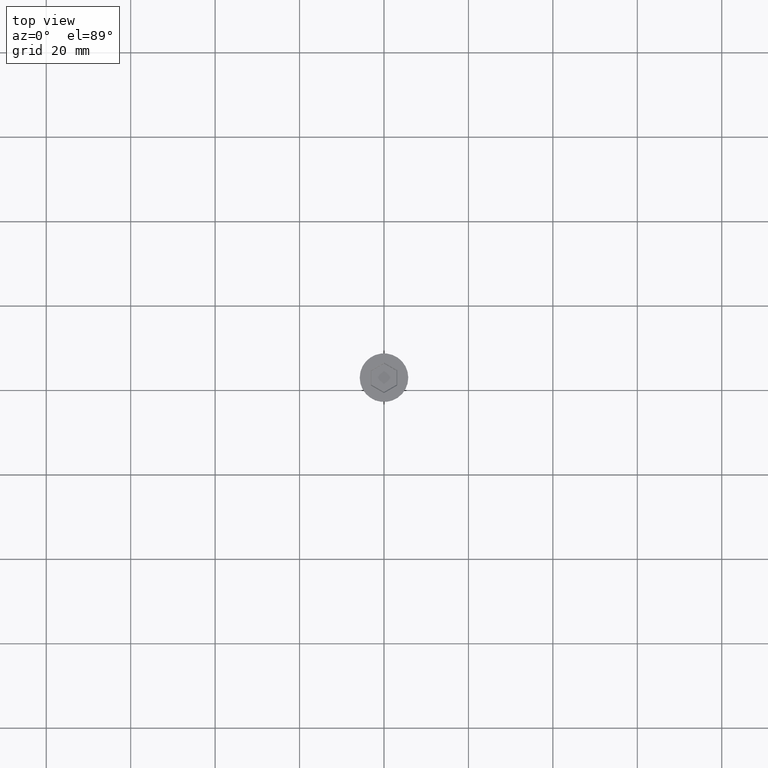
[diagram: clean part render]
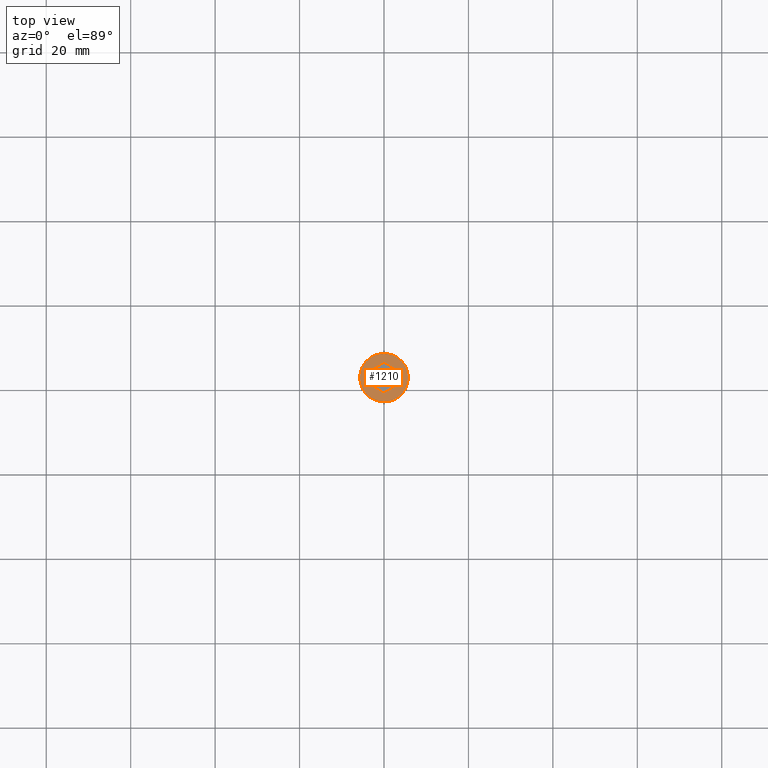
[diagram: same view with one face highlighted and labeled with its STEP entity id]
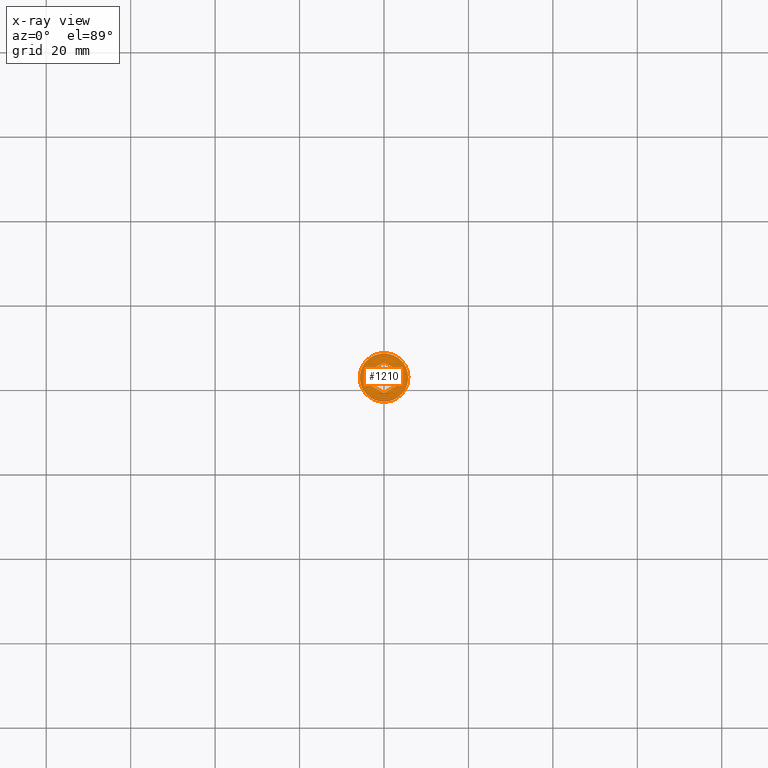
[diagram: x-ray of the same camera — body ghosted, the highlighted face saturated]
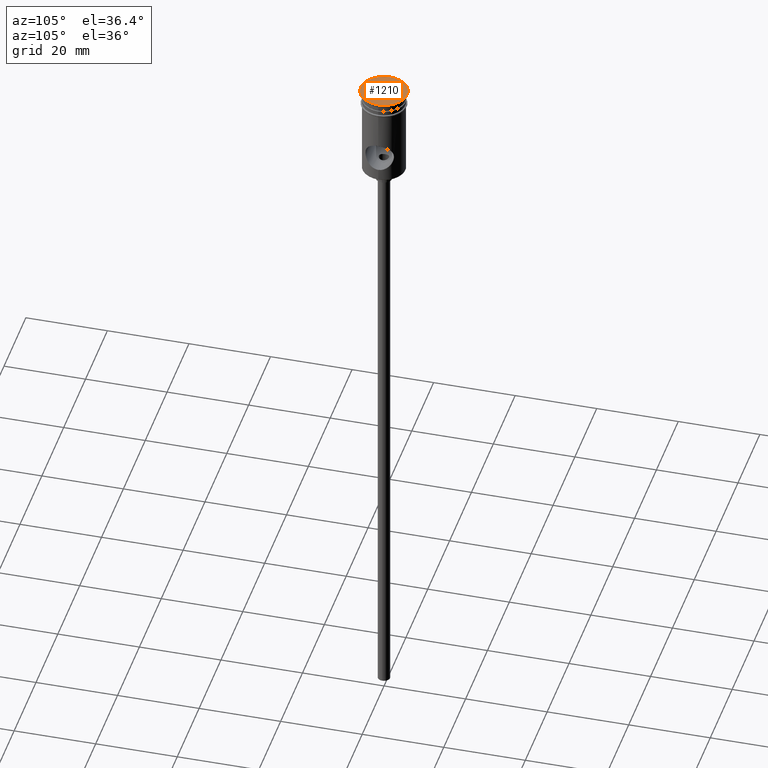
[diagram: same view with one face highlighted and labeled with its STEP entity id]
A machine part, top view. The second image highlights one B-rep face of the part: STEP entity #1210.
The next image is the same camera in x-ray: the body ghosted, the highlighted face saturated — about 0% of this face is hidden behind the body in this view.
A second angle (auxiliary view) of the same face is appended — the face is thin or edge-on in the first view.
In plain terms, the highlighted planar face has unit normal (0, -0, 1).
Its self-contained STEP definition (entity closure, byte-faithful):
#11 = VERTEX_POINT ( 'NONE', #1347 ) ;
#30 = VECTOR ( 'NONE', #104, 1000.000000000000000 ) ;
#49 = CARTESIAN_POINT ( 'NONE',  ( 0.000000000000000000, 0.000000000000000000, 0.000000000000000000 ) ) ;
#62 = DIRECTION ( 'NONE',  ( 0.000000000000000000, 1.000000000000000000, 0.000000000000000000 ) ) ;
#67 = CARTESIAN_POINT ( 'NONE',  ( 3.149999999999978151, -1.703183294109396284, 0.000000000000000000 ) ) ;
#91 = EDGE_CURVE ( 'NONE', #437, #11, #102, .T. ) ;
#93 = ORIENTED_EDGE ( 'NONE', *, *, #91, .T. ) ;
#102 = CIRCLE ( 'NONE', #1134, 5.750000000000000000 ) ;
#104 = DIRECTION ( 'NONE',  ( -0.8660254037844387076, -0.4999999999999998890, 0.000000000000000000 ) ) ;
#172 = LINE ( 'NONE', #1068, #323 ) ;
#222 = EDGE_CURVE ( 'NONE', #1113, #1168, #417, .T. ) ;
#289 = VERTEX_POINT ( 'NONE', #849 ) ;
#322 = AXIS2_PLACEMENT_3D ( 'NONE', #504, #1359, #802 ) ;
#323 = VECTOR ( 'NONE', #62, 1000.000000000000000 ) ;
#330 = LINE ( 'NONE', #656, #30 ) ;
#331 = VERTEX_POINT ( 'NONE', #1017 ) ;
#333 = ORIENTED_EDGE ( 'NONE', *, *, #222, .T. ) ;
#340 = DIRECTION ( 'NONE',  ( 0.8660254037844385966, 0.5000000000000001110, 0.000000000000000000 ) ) ;
#344 = ORIENTED_EDGE ( 'NONE', *, *, #771, .T. ) ;
#350 = DIRECTION ( 'NONE',  ( 1.000000000000000000, 0.000000000000000000, 0.000000000000000000 ) ) ;
#363 = EDGE_CURVE ( 'NONE', #11, #437, #1421, .T. ) ;
#377 = CARTESIAN_POINT ( 'NONE',  ( -3.149999999999978595, -1.818653347947308818, 0.000000000000000000 ) ) ;
#390 = DIRECTION ( 'NONE',  ( 1.000000000000000000, 0.000000000000000000, 0.000000000000000000 ) ) ;
#401 = EDGE_CURVE ( 'NONE', #331, #1220, #1135, .T. ) ;
#417 = LINE ( 'NONE', #67, #1084 ) ;
#437 = VERTEX_POINT ( 'NONE', #997 ) ;
#453 = LINE ( 'NONE', #1007, #1403 ) ;
#494 = FACE_OUTER_BOUND ( 'NONE', #1136, .T. ) ;
#495 = ORIENTED_EDGE ( 'NONE', *, *, #401, .T. ) ;
#504 = CARTESIAN_POINT ( 'NONE',  ( 0.000000000000000000, 0.000000000000000000, 0.000000000000000000 ) ) ;
#507 = CARTESIAN_POINT ( 'NONE',  ( 3.149999999999978151, -1.818653347947309262, 0.000000000000000000 ) ) ;
#535 = VECTOR ( 'NONE', #795, 1000.000000000000114 ) ;
#569 = DIRECTION ( 'NONE',  ( -0.000000000000000000, -0.000000000000000000, 1.000000000000000000 ) ) ;
#581 = ORIENTED_EDGE ( 'NONE', *, *, #735, .T. ) ;
#640 = DIRECTION ( 'NONE',  ( -2.546295930062981593E-16, -1.000000000000000000, 0.000000000000000000 ) ) ;
#656 = CARTESIAN_POINT ( 'NONE',  ( 0.09999999999998870903, -3.579571668975661591, 0.000000000000000000 ) ) ;
#682 = CARTESIAN_POINT ( 'NONE',  ( -3.163467028841980443E-16, 3.637306695894617192, 0.000000000000000000 ) ) ;
#684 = EDGE_LOOP ( 'NONE', ( #495, #950, #344, #581, #333, #800 ) ) ;
#700 = EDGE_CURVE ( 'NONE', #1220, #289, #172, .T. ) ;
#722 = FACE_BOUND ( 'NONE', #684, .T. ) ;
#735 = EDGE_CURVE ( 'NONE', #803, #1113, #785, .T. ) ;
#748 = VECTOR ( 'NONE', #868, 1000.000000000000000 ) ;
#769 = EDGE_CURVE ( 'NONE', #1168, #331, #330, .T. ) ;
#771 = EDGE_CURVE ( 'NONE', #289, #803, #453, .T. ) ;
#785 = LINE ( 'NONE', #1226, #748 ) ;
#795 = DIRECTION ( 'NONE',  ( -0.8660254037844385966, 0.5000000000000001110, 0.000000000000000000 ) ) ;
#800 = ORIENTED_EDGE ( 'NONE', *, *, #769, .T. ) ;
#802 = DIRECTION ( 'NONE',  ( 1.000000000000000000, 0.000000000000000000, 0.000000000000000000 ) ) ;
#803 = VERTEX_POINT ( 'NONE', #682 ) ;
#849 = CARTESIAN_POINT ( 'NONE',  ( -3.149999999999978595, 1.818653347947308374, 0.000000000000000000 ) ) ;
#868 = DIRECTION ( 'NONE',  ( 0.8660254037844387076, -0.4999999999999998890, 0.000000000000000000 ) ) ;
#919 = ORIENTED_EDGE ( 'NONE', *, *, #363, .T. ) ;
#930 = PLANE ( 'NONE',  #322 ) ;
#950 = ORIENTED_EDGE ( 'NONE', *, *, #700, .T. ) ;
#997 = CARTESIAN_POINT ( 'NONE',  ( 5.750000000000000000, 0.000000000000000000, 0.000000000000000000 ) ) ;
#1007 = CARTESIAN_POINT ( 'NONE',  ( -0.09999999999998937517, 3.579571668975661147, 0.000000000000000000 ) ) ;
#1017 = CARTESIAN_POINT ( 'NONE',  ( -5.257856505504653693E-16, -3.637306695894617636, 0.000000000000000000 ) ) ;
#1068 = CARTESIAN_POINT ( 'NONE',  ( -3.149999999999978595, 1.703183294109395840, 0.000000000000000000 ) ) ;
#1084 = VECTOR ( 'NONE', #640, 1000.000000000000000 ) ;
#1113 = VERTEX_POINT ( 'NONE', #1166 ) ;
#1134 = AXIS2_PLACEMENT_3D ( 'NONE', #49, #1277, #390 ) ;
#1135 = LINE ( 'NONE', #1321, #535 ) ;
#1136 = EDGE_LOOP ( 'NONE', ( #93, #919 ) ) ;
#1166 = CARTESIAN_POINT ( 'NONE',  ( 3.149999999999979039, 1.818653347947308596, 0.000000000000000000 ) ) ;
#1168 = VERTEX_POINT ( 'NONE', #507 ) ;
#1210 = ADVANCED_FACE ( 'NONE', ( #722, #494 ), #930, .T. ) ;
#1220 = VERTEX_POINT ( 'NONE', #377 ) ;
#1226 = CARTESIAN_POINT ( 'NONE',  ( 3.049999999999990052, 1.876388374866264863, 0.000000000000000000 ) ) ;
#1277 = DIRECTION ( 'NONE',  ( -0.000000000000000000, -0.000000000000000000, 1.000000000000000000 ) ) ;
#1313 = CARTESIAN_POINT ( 'NONE',  ( 0.000000000000000000, 0.000000000000000000, 0.000000000000000000 ) ) ;
#1321 = CARTESIAN_POINT ( 'NONE',  ( -3.049999999999989608, -1.876388374866265085, 0.000000000000000000 ) ) ;
#1347 = CARTESIAN_POINT ( 'NONE',  ( -5.750000000000000000, 7.041719095097280880E-16, 0.000000000000000000 ) ) ;
#1359 = DIRECTION ( 'NONE',  ( 0.000000000000000000, -0.000000000000000000, 1.000000000000000000 ) ) ;
#1397 = AXIS2_PLACEMENT_3D ( 'NONE', #1313, #569, #350 ) ;
#1403 = VECTOR ( 'NONE', #340, 1000.000000000000114 ) ;
#1421 = CIRCLE ( 'NONE', #1397, 5.750000000000000000 ) ;